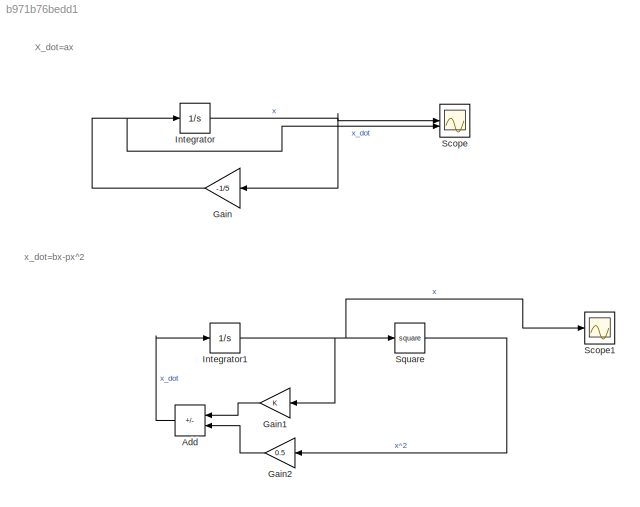
MODEL slx_b971b76bedd1
KIND model
CONFIG AbsTol = auto
CONFIG EnableMultiTasking = off
CONFIG FixedStep = auto
CONFIG MaxStep = auto
CONFIG MinStep = auto
CONFIG RelTol = 1e-3
CONFIG SampleTimeConstraint = Unconstrained
CONFIG SolverName = VariableStepAuto
CONFIG StartTime = 0.0
CONFIG StopTime = 2
BLOCK [Sum] Add
  IconShape = rectangular
  Inputs = +-
  NameLocation = top
BLOCK [Gain] Gain
  Gain = -1/5
  NameLocation = top
BLOCK [Gain] Gain1
  NameLocation = top
BLOCK [Gain] Gain2
  Gain = 0.5
  NameLocation = top
BLOCK [Integrator] Integrator
  InitialCondition = 1
BLOCK [Integrator] Integrator1
  InitialCondition = 100
BLOCK [Scope] Scope
  Floating = off
  NumInputPorts = 2
  ScopeSpecificationString = Simulink.scopes.TimeScopeBlockCfg('CurrentConfiguration', extmgr.ConfigurationSet(extmgr.Configuration('Core','General UI',true),extmgr.Configuration('Core','Source UI',true),extmgr.Configuration('Sources','WiredSimulink',true),extmgr.Configuration('Visuals','Time Domain',true,'SerializedDisplays',{struct('MinYLimReal','-0.35','MaxYLimReal','1.15','YLabelReal','','MinYLimMag','0.00000','MaxYLimMag...<+1334ch>
BLOCK [Scope] Scope1
  Floating = off
  NumInputPorts = 1
  ScopeSpecificationString = Simulink.scopes.TimeScopeBlockCfg('CurrentConfiguration', extmgr.ConfigurationSet(extmgr.Configuration('Core','General UI',true),extmgr.Configuration('Core','Source UI',true),extmgr.Configuration('Sources','WiredSimulink',true,'DataLoggingVariableName','ScopeData1'),extmgr.Configuration('Visuals','Time Domain',true,'SerializedDisplays',{struct('MinYLimReal','-9.90585','MaxYLimReal','112.21176','YL...<+1368ch>
BLOCK [Math] Square
  Operator = square
ANNOTATION (root): x_dot=bx-px^2
ANNOTATION (root): X_dot=ax
LINE Add:1 -> Integrator1:1
LINE Gain1:1 -> Add:1
LINE Gain2:1 -> Add:2
NET Gain:1 -> Integrator:1, Scope:2
NET Integrator1:1 -> Gain1:1, Scope1:1, Square:1
NET Integrator:1 -> Gain:1, Scope:1
LINE Square:1 -> Gain2:1
note: NET lines group one-source signal fan-out (src -> all destinations, sorted); 1:1 wires keep LINE
